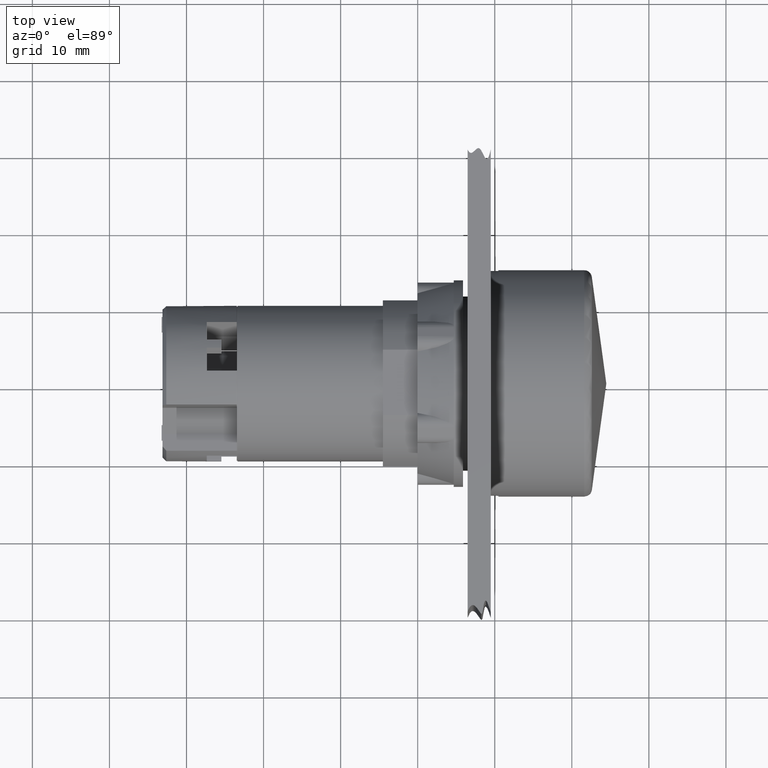
[diagram: clean part render]
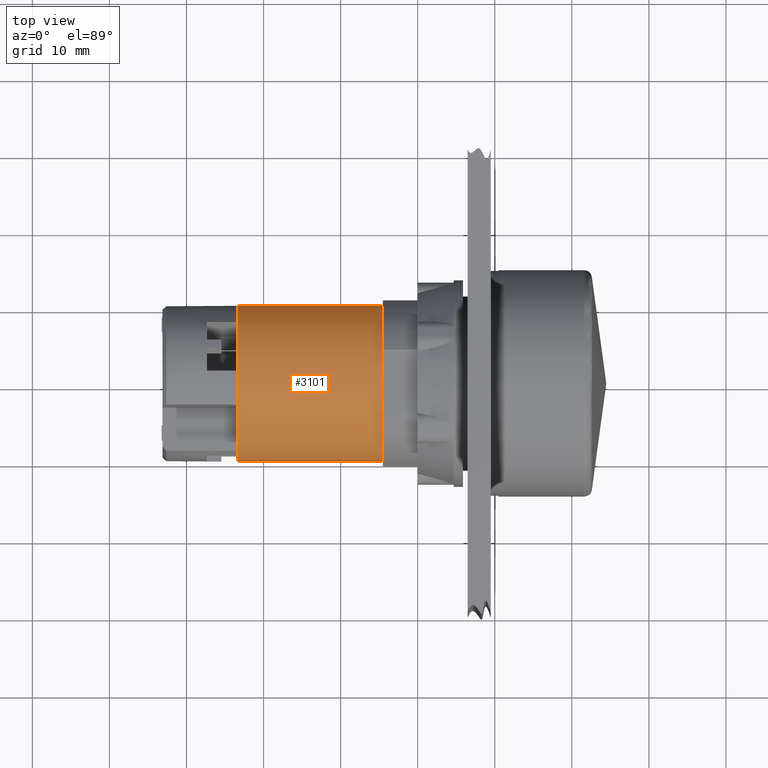
[diagram: same view with one face highlighted and labeled with its STEP entity id]
A machine part, top view. The second image highlights one B-rep face of the part: STEP entity #3101.
In plain terms, the highlighted cylindrical surface (bore or boss wall) has radius 10.1 mm, axis along (1, 0, 0).
Its self-contained STEP definition (entity closure, byte-faithful):
#2853=CARTESIAN_POINT('',(-14.522597079042569,-9.725286447873549,0.0));
#2854=VERTEX_POINT('',#2853);
#2916=CARTESIAN_POINT('',(-14.522597079042569,10.474713552126360,0.0));
#2917=VERTEX_POINT('',#2916);
#2997=CARTESIAN_POINT('',(-14.522597079042567,0.374713552126451,0.0));
#2998=DIRECTION('',(1.0,-1.302521E-013,0.0));
#2999=DIRECTION('',(1.302521E-013,1.0,0.0));
#3000=AXIS2_PLACEMENT_3D('',#2997,#2998,#2999);
#3001=CIRCLE('',#3000,10.099999999999909);
#3002=EDGE_CURVE('',#2854,#2917,#3001,.T.);
#3068=CARTESIAN_POINT('',(-33.372597079042578,10.474713552126316,0.0));
#3069=VERTEX_POINT('',#3068);
#3070=CARTESIAN_POINT('',(-33.372597079042578,0.374713552126451,0.0));
#3071=DIRECTION('',(1.0,-1.302521E-013,0.0));
#3072=DIRECTION('',(1.302521E-013,1.0,0.0));
#3073=AXIS2_PLACEMENT_3D('',#3070,#3071,#3072);
#3074=CIRCLE('',#3073,10.099999999999865);
#3075=EDGE_CURVE('',#3069,#3069,#3074,.T.);
#3083=CARTESIAN_POINT('',(-23.947597079042570,0.374713552126451,0.0));
#3084=DIRECTION('',(1.0,0.0,0.0));
#3085=DIRECTION('',(1.302521E-013,1.0,0.0));
#3086=AXIS2_PLACEMENT_3D('',#3083,#3084,#3085);
#3087=CYLINDRICAL_SURFACE('',#3086,10.099999999999888);
#3088=CARTESIAN_POINT('',(-14.522597079042567,0.374713552126451,0.0));
#3089=DIRECTION('',(1.0,-1.302521E-013,0.0));
#3090=DIRECTION('',(1.302521E-013,1.0,0.0));
#3091=AXIS2_PLACEMENT_3D('',#3088,#3089,#3090);
#3092=CIRCLE('',#3091,10.099999999999909);
#3093=EDGE_CURVE('',#2917,#2854,#3092,.T.);
#3094=ORIENTED_EDGE('',*,*,#3093,.F.);
#3095=ORIENTED_EDGE('',*,*,#3002,.F.);
#3096=EDGE_LOOP('',(#3094,#3095));
#3097=FACE_OUTER_BOUND('',#3096,.T.);
#3098=ORIENTED_EDGE('',*,*,#3075,.T.);
#3099=EDGE_LOOP('',(#3098));
#3100=FACE_BOUND('',#3099,.T.);
#3101=ADVANCED_FACE('',(#3097,#3100),#3087,.T.);